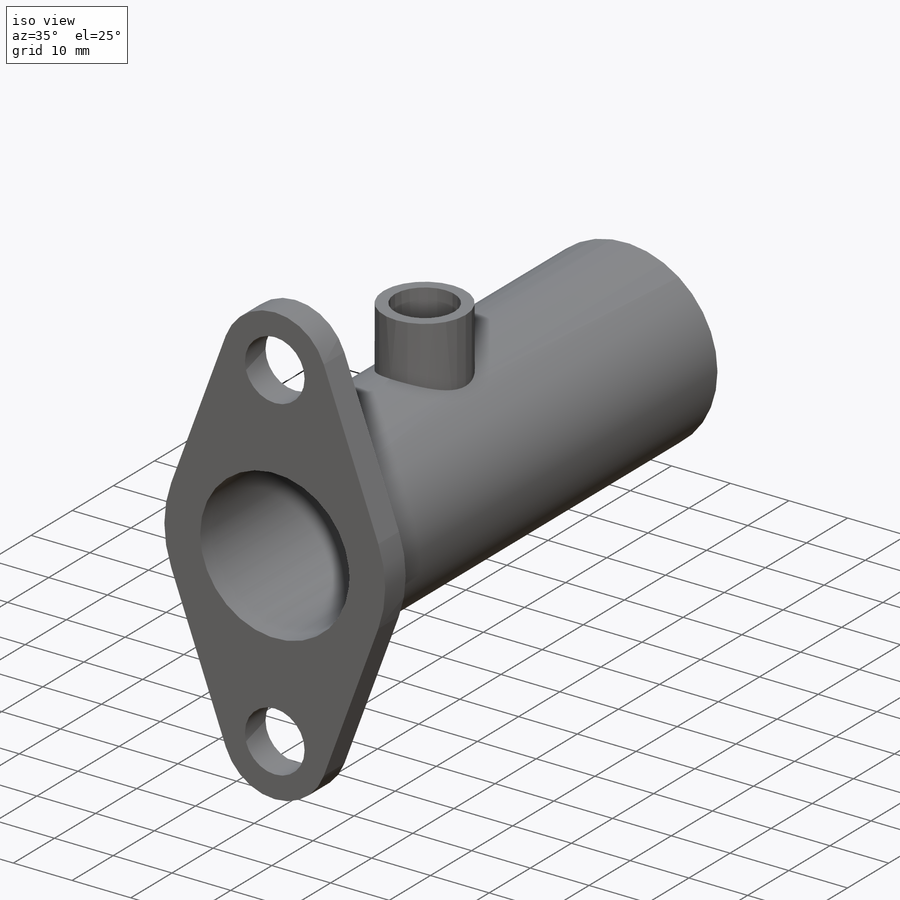
[diagram: iso view]
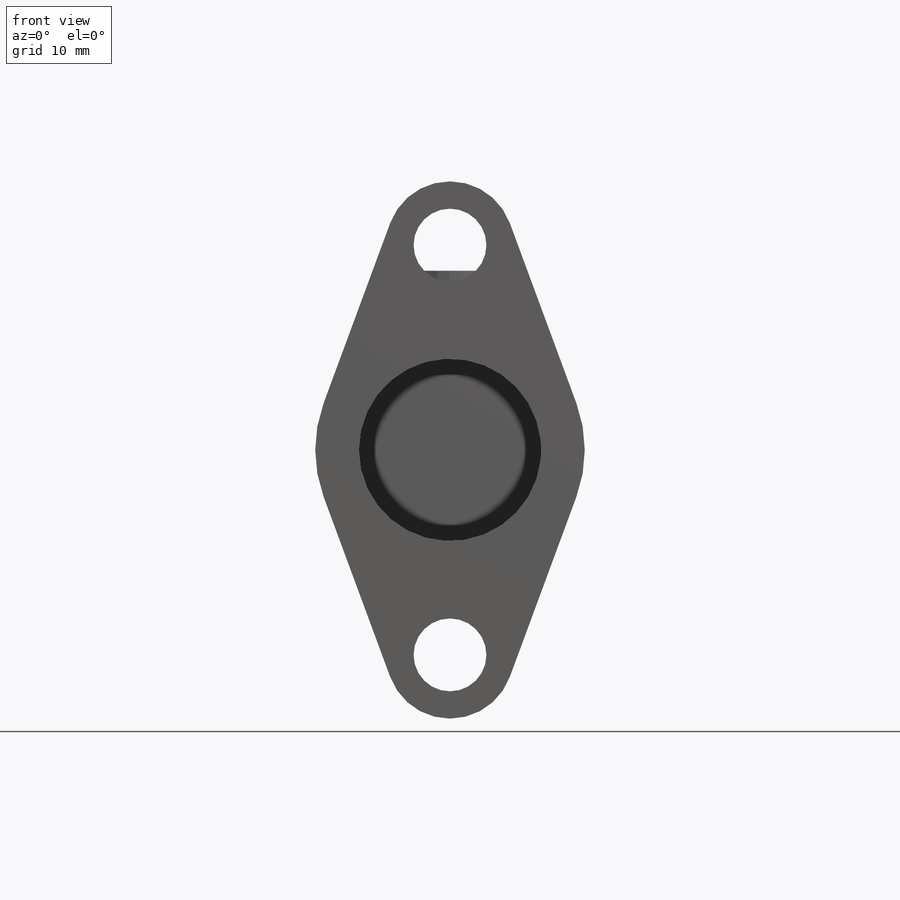
[diagram: front view]
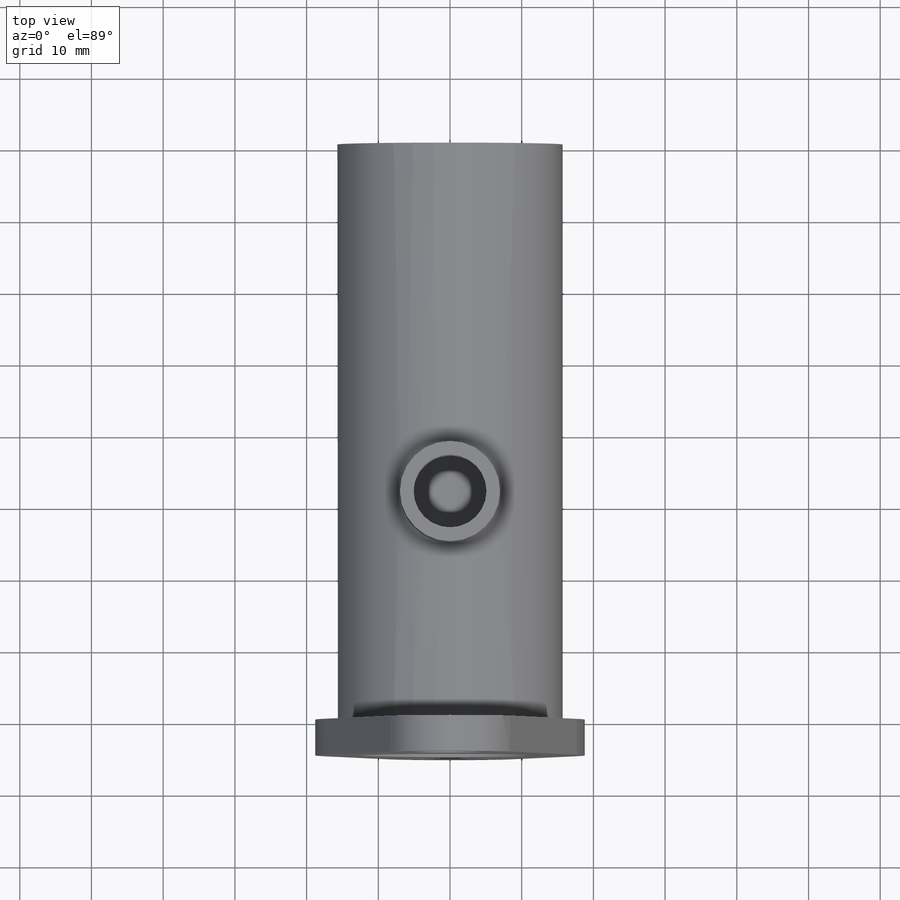
[diagram: top view]
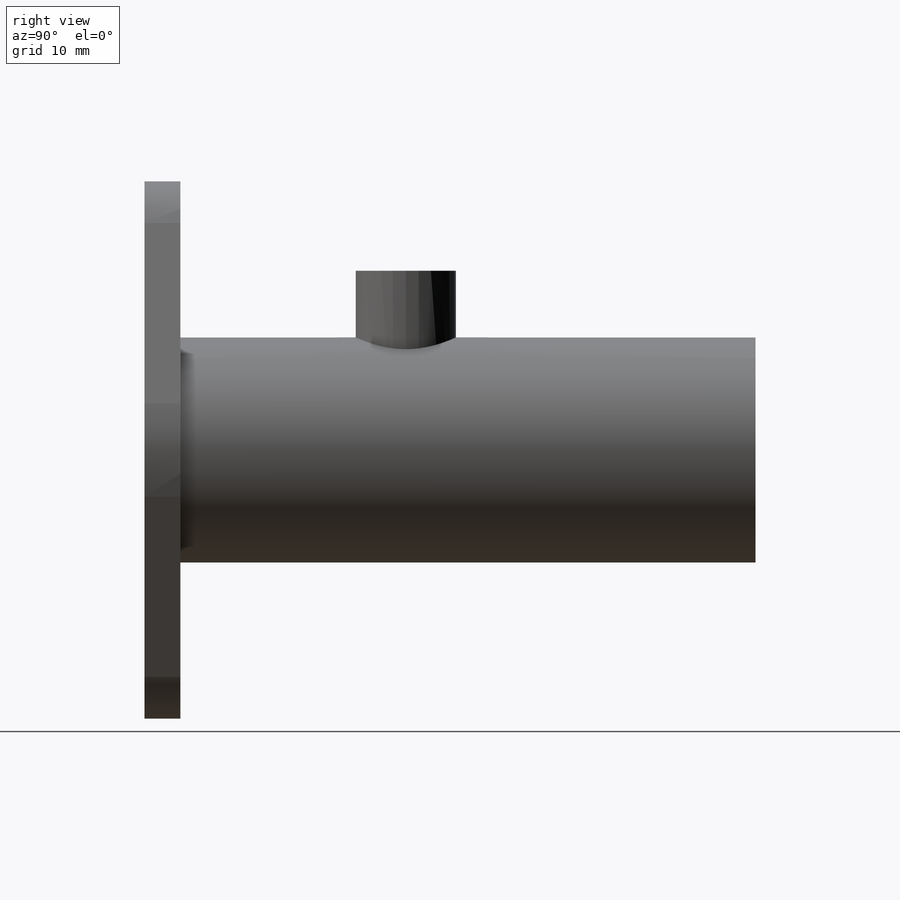
[diagram: right view]
SOLIDWORKS PART (.sldprt)
format: sldprt  version: not decoded by parser v0  size: 220,160 bytes
history: native  units: mm
features: sketch x5, extrude x4, material x1, plane x1, cut_extrude x1 (+13 scaffold rows collapsed)
feature tree (25):
  scaffold x13  (default folders/planes/origin — collapsed)
  material  "6061-T6 (SS)"
  sketch  "Sketch1"  dims[D1=25.4mm D3=17.78mm D4=37.592mm D5=10.16mm D2=57.15mm]
  extrude  "Boss-Extrude1"  Depth=5mm
  sketch  "Sketch2"  dims[D1=25.4mm D2=3.0mm]
  extrude  "Boss-Extrude2"  Depth=77.216mm
  sketch  "Sketch3"  dims[D1=31.4mm]
  extrude  "Boss-Extrude3"  Depth=3mm
  plane  "Plane1"  Offset=25mm
  sketch  "Sketch4"  dims[D2=13.97mm D3=10.16mm D1=48.768mm]
  extrude  "Boss-Extrude5"  [1 undecoded]
  cut_extrude  "Cut-Extrude1"  [1 undecoded]
  sketch  "Sketch4<5>"
decode coverage: 7 of 10 modeling features carry decoded parameters
note: 2 parameter values undecoded
note: suppression state not decoded; provenance and decode notes live in map.json
